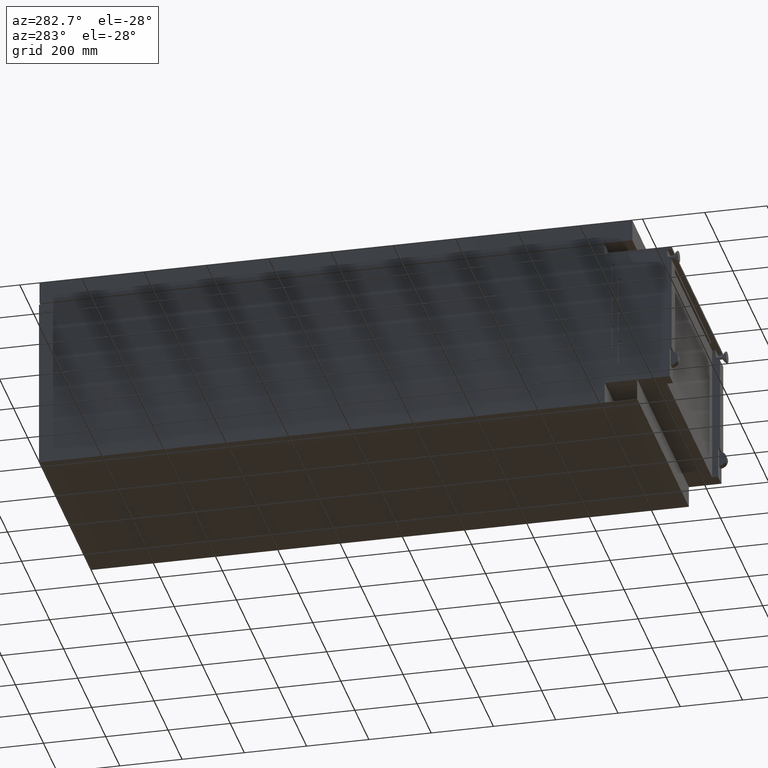
[diagram: clean part render]
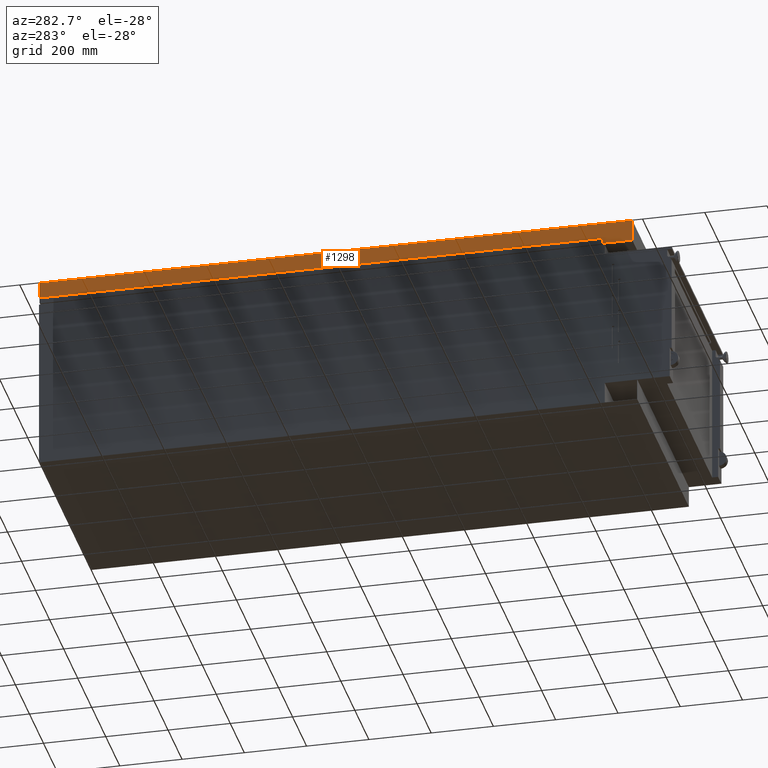
[diagram: same view with one face highlighted and labeled with its STEP entity id]
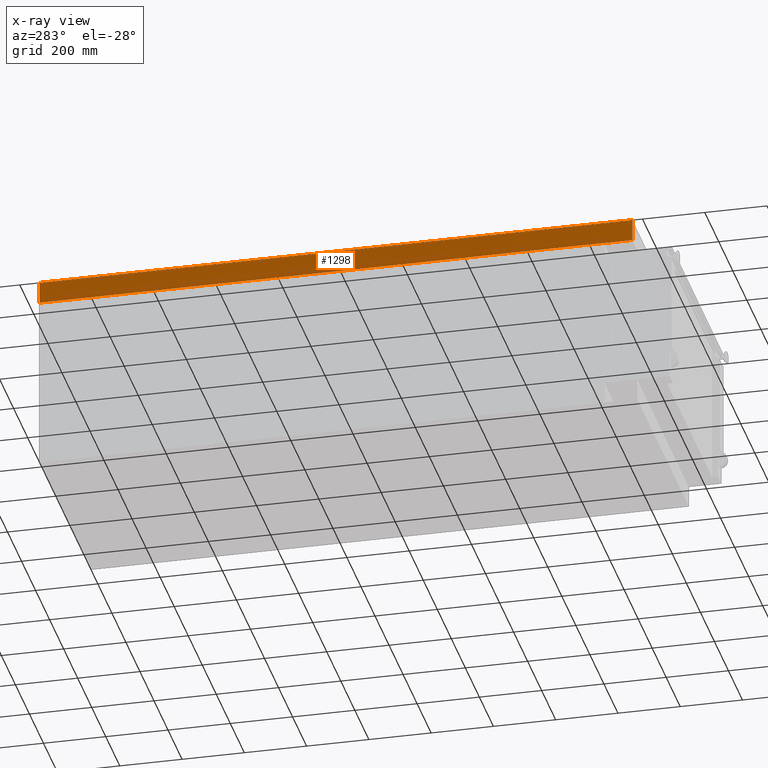
[diagram: x-ray of the same camera — body ghosted, the highlighted face saturated]
A machine part, auxiliary view. The second image highlights one B-rep face of the part: STEP entity #1298.
The next image is the same camera in x-ray: the body ghosted, the highlighted face saturated — about 0% of this face is hidden behind the body in this view.
In plain terms, the highlighted planar face has unit normal (1, 0, -0).
Its self-contained STEP definition (entity closure, byte-faithful):
#252 = CARTESIAN_POINT ( 'NONE',  ( -361.2999997170345000, 1015.849999999999900, 290.0000000000000600 ) ) ;
#1298 = ADVANCED_FACE ( 'NONE', ( #8374 ), #5988, .F. ) ;
#1332 = DIRECTION ( 'NONE',  ( 0.0000000000000000000, 0.0000000000000000000, 1.000000000000000000 ) ) ;
#1726 = EDGE_LOOP ( 'NONE', ( #2089, #4454, #4805, #6991 ) ) ;
#1899 = EDGE_CURVE ( 'NONE', #9402, #3680, #5378, .T. ) ;
#2089 = ORIENTED_EDGE ( 'NONE', *, *, #3596, .F. ) ;
#2148 = CARTESIAN_POINT ( 'NONE',  ( -361.2999997170345000, -888.1499999999999800, 290.0000000000000600 ) ) ;
#2221 = DIRECTION ( 'NONE',  ( 0.0000000000000000000, 1.000000000000000000, 0.0000000000000000000 ) ) ;
#2393 = DIRECTION ( 'NONE',  ( 0.0000000000000000000, -0.0000000000000000000, -1.000000000000000000 ) ) ;
#2419 = LINE ( 'NONE', #5786, #10205 ) ;
#2564 = VECTOR ( 'NONE', #5856, 1000.000000000000000 ) ;
#2627 = LINE ( 'NONE', #6354, #3126 ) ;
#2748 = CARTESIAN_POINT ( 'NONE',  ( -361.2999997170345000, -888.1499999999999800, 360.0000000000000600 ) ) ;
#3126 = VECTOR ( 'NONE', #2393, 1000.000000000000000 ) ;
#3596 = EDGE_CURVE ( 'NONE', #5148, #3811, #6838, .T. ) ;
#3680 = VERTEX_POINT ( 'NONE', #4216 ) ;
#3811 = VERTEX_POINT ( 'NONE', #6197 ) ;
#4149 = DIRECTION ( 'NONE',  ( 0.0000000000000000000, -0.0000000000000000000, -1.000000000000000000 ) ) ;
#4216 = CARTESIAN_POINT ( 'NONE',  ( -361.2999997170345000, 1015.849999999999900, 360.0000000000000600 ) ) ;
#4454 = ORIENTED_EDGE ( 'NONE', *, *, #5382, .F. ) ;
#4481 = VECTOR ( 'NONE', #2221, 1000.000000000000000 ) ;
#4497 = CARTESIAN_POINT ( 'NONE',  ( -361.2999997170345000, 1015.849999999999900, 360.0000000000000600 ) ) ;
#4805 = ORIENTED_EDGE ( 'NONE', *, *, #1899, .T. ) ;
#5148 = VERTEX_POINT ( 'NONE', #2148 ) ;
#5378 = LINE ( 'NONE', #10224, #4481 ) ;
#5382 = EDGE_CURVE ( 'NONE', #9402, #5148, #2419, .T. ) ;
#5786 = CARTESIAN_POINT ( 'NONE',  ( -361.2999997170345000, -888.1499999999999800, 360.0000000000000600 ) ) ;
#5856 = DIRECTION ( 'NONE',  ( 0.0000000000000000000, 1.000000000000000000, 0.0000000000000000000 ) ) ;
#5988 = PLANE ( 'NONE',  #6334 ) ;
#6197 = CARTESIAN_POINT ( 'NONE',  ( -361.2999997170345000, 1015.849999999999900, 290.0000000000000600 ) ) ;
#6334 = AXIS2_PLACEMENT_3D ( 'NONE', #4497, #10156, #1332 ) ;
#6354 = CARTESIAN_POINT ( 'NONE',  ( -361.2999997170345000, 1015.849999999999900, 360.0000000000000600 ) ) ;
#6838 = LINE ( 'NONE', #252, #2564 ) ;
#6985 = EDGE_CURVE ( 'NONE', #3680, #3811, #2627, .T. ) ;
#6991 = ORIENTED_EDGE ( 'NONE', *, *, #6985, .T. ) ;
#8374 = FACE_OUTER_BOUND ( 'NONE', #1726, .T. ) ;
#9402 = VERTEX_POINT ( 'NONE', #2748 ) ;
#10156 = DIRECTION ( 'NONE',  ( 1.000000000000000000, 0.0000000000000000000, -0.0000000000000000000 ) ) ;
#10205 = VECTOR ( 'NONE', #4149, 1000.000000000000000 ) ;
#10224 = CARTESIAN_POINT ( 'NONE',  ( -361.2999997170345000, 1015.849999999999900, 360.0000000000000600 ) ) ;